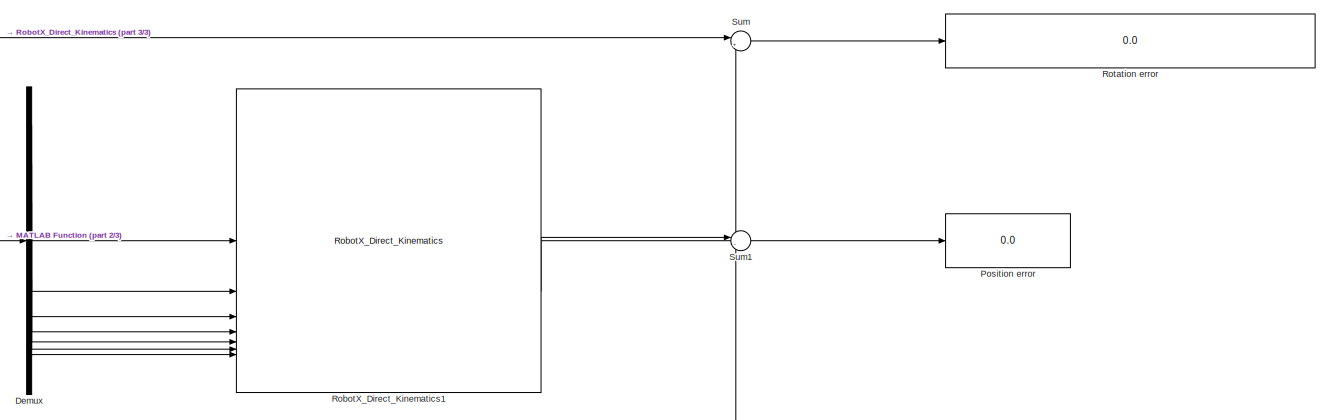
[diagram: root canvas - part 1/3, right side, full height]
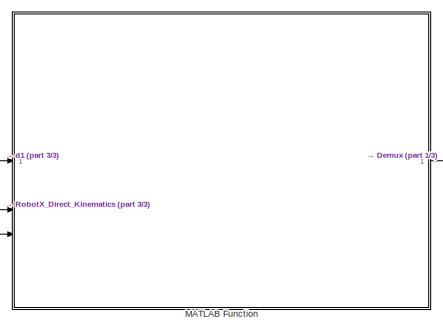
[diagram: root canvas - part 2/3, central region]
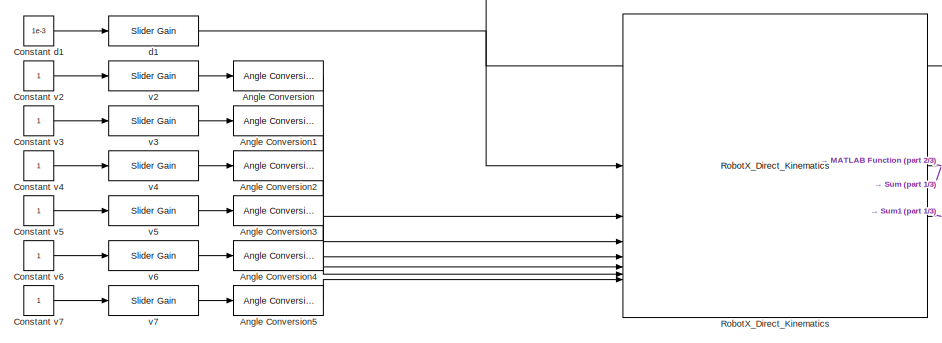
[diagram: root canvas - part 3/3, middle left region]
MODEL slx_494556e0ecc2
KIND model
CONFIG AbsTol = auto
CONFIG EnableMultiTasking = off
CONFIG FixedStep = auto
CONFIG MaxStep = 1e-3
CONFIG MinStep = auto
CONFIG RelTol = 1e-3
CONFIG SampleTimeConstraint = Unconstrained
CONFIG SolverName = VariableStepAuto
CONFIG StartTime = 0.0
CONFIG StopTime = 10.0
BLOCK [Reference] Angle Conversion  REF=aerolibconvert2/Angle Conversion
  SourceBlock = aerolibconvert2/Angle Conversion
  SourceType = Angle Conversion
BLOCK [Reference] Angle Conversion1  REF=aerolibconvert2/Angle Conversion
  SourceBlock = aerolibconvert2/Angle Conversion
  SourceType = Angle Conversion
BLOCK [Reference] Angle Conversion2  REF=aerolibconvert2/Angle Conversion
  SourceBlock = aerolibconvert2/Angle Conversion
  SourceType = Angle Conversion
BLOCK [Reference] Angle Conversion3  REF=aerolibconvert2/Angle Conversion
  SourceBlock = aerolibconvert2/Angle Conversion
  SourceType = Angle Conversion
BLOCK [Reference] Angle Conversion4  REF=aerolibconvert2/Angle Conversion
  SourceBlock = aerolibconvert2/Angle Conversion
  SourceType = Angle Conversion
BLOCK [Reference] Angle Conversion5  REF=aerolibconvert2/Angle Conversion
  SourceBlock = aerolibconvert2/Angle Conversion
  SourceType = Angle Conversion
BLOCK [Constant] Constant d1
  Value = 1e-3
BLOCK [Constant] Constant v2
BLOCK [Constant] Constant v3
BLOCK [Constant] Constant v4
BLOCK [Constant] Constant v5
BLOCK [Constant] Constant v6
BLOCK [Constant] Constant v7
BLOCK [Demux] Demux
  Outputs = 7
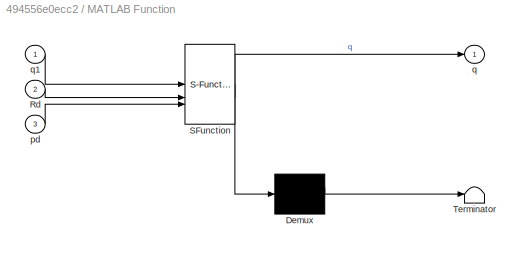
BLOCK [SubSystem] MATLAB Function
  ErrorFcn = Stateflow.Translate.translate
  PermitHierarchicalResolution = ExplicitOnly
  SFBlockType = MATLAB Function
  TreatAsAtomicUnit = on
BLOCK [Demux] MATLAB Function/ Demux 
  Outputs = 1
BLOCK [S-Function] MATLAB Function/ SFunction 
  EnableBusSupport = on
  FunctionName = sf_sfun
  PortCounts = [3 2]
  SFcnIsStateOwnerBlock = off
  SFunctionDeploymentMode = off
  Tag = Stateflow S-Function 2
BLOCK [Terminator] MATLAB Function/ Terminator 
BLOCK [Inport] MATLAB Function/Rd
  Port = 2
BLOCK [Inport] MATLAB Function/pd
  Port = 3
BLOCK [Outport] MATLAB Function/q
BLOCK [Inport] MATLAB Function/q1
BLOCK [Display] Position error
  Decimation = 1
  Format = decimal (Stored Integer)
BLOCK [Reference] RobotX_Direct_Kinematics  REF=RobotX_Lib/RobotX_Direct_Kinematics
  SourceBlock = RobotX_Lib/RobotX_Direct_Kinematics
  SourceType = SubSystem
BLOCK [Reference] RobotX_Direct_Kinematics1  REF=RobotX_Lib/RobotX_Direct_Kinematics
  SourceBlock = RobotX_Lib/RobotX_Direct_Kinematics
  SourceType = SubSystem
BLOCK [Display] Rotation error
  Decimation = 1
  Format = decimal (Stored Integer)
BLOCK [Sum] Sum
  Inputs = |+-
BLOCK [Sum] Sum1
  Inputs = |-+
BLOCK [Reference] d1  REF=simulink/Math
Operations/Slider
Gain
  SourceBlock = simulink/Math\nOperations/Slider\nGain
  SourceType = Slider Gain
BLOCK [Reference] v2  REF=simulink/Math
Operations/Slider
Gain
  SourceBlock = simulink/Math\nOperations/Slider\nGain
  SourceType = Slider Gain
BLOCK [Reference] v3  REF=simulink/Math
Operations/Slider
Gain
  SourceBlock = simulink/Math\nOperations/Slider\nGain
  SourceType = Slider Gain
BLOCK [Reference] v4  REF=simulink/Math
Operations/Slider
Gain
  SourceBlock = simulink/Math\nOperations/Slider\nGain
  SourceType = Slider Gain
BLOCK [Reference] v5  REF=simulink/Math
Operations/Slider
Gain
  SourceBlock = simulink/Math\nOperations/Slider\nGain
  SourceType = Slider Gain
BLOCK [Reference] v6  REF=simulink/Math
Operations/Slider
Gain
  SourceBlock = simulink/Math\nOperations/Slider\nGain
  SourceType = Slider Gain
BLOCK [Reference] v7  REF=simulink/Math
Operations/Slider
Gain
  SourceBlock = simulink/Math\nOperations/Slider\nGain
  SourceType = Slider Gain
LINE Angle Conversion1:1 -> RobotX_Direct_Kinematics:3
LINE Angle Conversion2:1 -> RobotX_Direct_Kinematics:4
LINE Angle Conversion3:1 -> RobotX_Direct_Kinematics:5
LINE Angle Conversion4:1 -> RobotX_Direct_Kinematics:6
LINE Angle Conversion5:1 -> RobotX_Direct_Kinematics:7
LINE Angle Conversion:1 -> RobotX_Direct_Kinematics:2
LINE Constant d1:1 -> d1:1
LINE Constant v2:1 -> v2:1
LINE Constant v3:1 -> v3:1
LINE Constant v4:1 -> v4:1
LINE Constant v5:1 -> v5:1
LINE Constant v6:1 -> v6:1
LINE Constant v7:1 -> v7:1
LINE Demux:1 -> RobotX_Direct_Kinematics1:1
LINE Demux:2 -> RobotX_Direct_Kinematics1:2
LINE Demux:3 -> RobotX_Direct_Kinematics1:3
LINE Demux:4 -> RobotX_Direct_Kinematics1:4
LINE Demux:5 -> RobotX_Direct_Kinematics1:5
LINE Demux:6 -> RobotX_Direct_Kinematics1:6
LINE Demux:7 -> RobotX_Direct_Kinematics1:7
LINE MATLAB Function:1 -> Demux:1
LINE RobotX_Direct_Kinematics1:1 -> Sum:2
LINE RobotX_Direct_Kinematics1:2 -> Sum1:1
NET RobotX_Direct_Kinematics:1 -> MATLAB Function:2, Sum:1
NET RobotX_Direct_Kinematics:2 -> MATLAB Function:3, Sum1:2
LINE Sum1:1 -> Position error:1
LINE Sum:1 -> Rotation error:1
NET d1:1 -> MATLAB Function:1, RobotX_Direct_Kinematics:1
LINE v2:1 -> Angle Conversion:1
LINE v3:1 -> Angle Conversion1:1
LINE v4:1 -> Angle Conversion2:1
LINE v5:1 -> Angle Conversion3:1
LINE v6:1 -> Angle Conversion4:1
LINE v7:1 -> Angle Conversion5:1
note: NET lines group one-source signal fan-out (src -> all destinations, sorted); 1:1 wires keep LINE
CHART MATLAB Function states=1 transitions=1
  STATE_LABEL 'eML_blk_kernel()'
  STATE_LABEL 'SCRIPT:\nfunction q = RobotX_Inverse_Kinematics(q1, Rd, pd)\n%Inverse Kinematics Estimation\n\nq = zeros(1,7);\n\n% Lengths\na2 = 25e-3;\na3 = 315e-3;\na4 = 35e-3;\nd5 = 365e-3;\nd7 = 80e-3;\n\nz7 = Rd(:,3);\npw = pd - d7 * z7;\n\np1 = [-q1; 0; 189/250];\npw_ = pw - p1;\n\n%% Solve v2\nq2 = atan2(pw_(2,1), pw_(1,1));\n\n%% Solve v4\n%hypotenuse a4 -> d5\nh45 = sqrt(a4^2 + d5^2);\nq4 = asin(a4/h45);\n\n%% Solve v3\np2 = [sin(...<+1038ch>'
CHART  states=0 transitions=0
